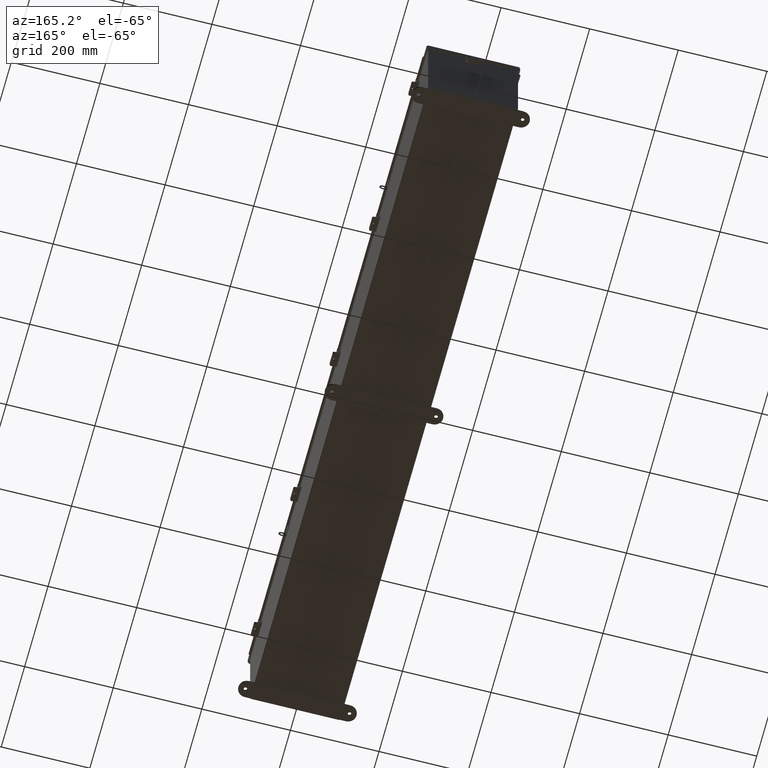
[diagram: clean part render]
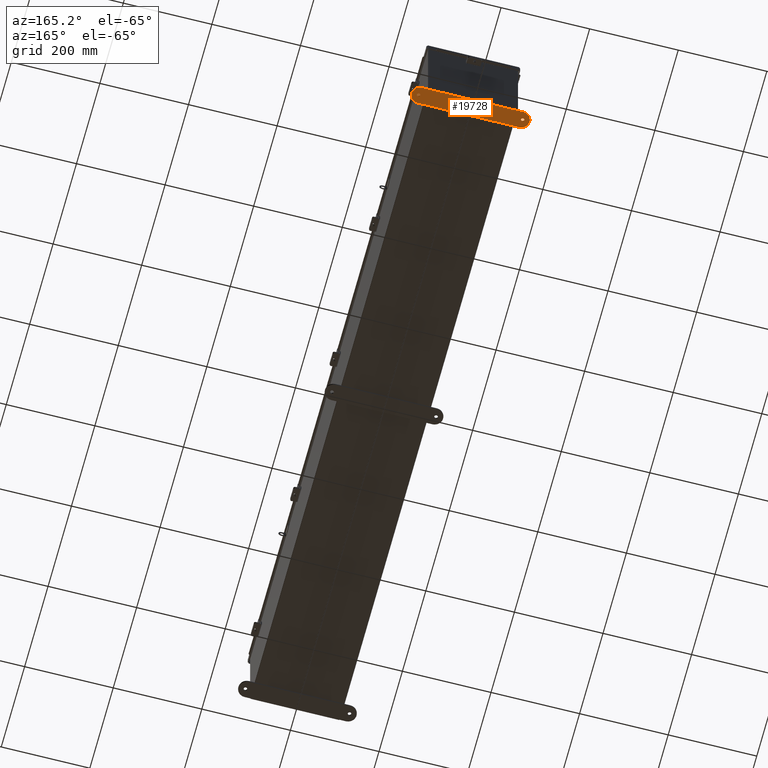
[diagram: same view with one face highlighted and labeled with its STEP entity id]
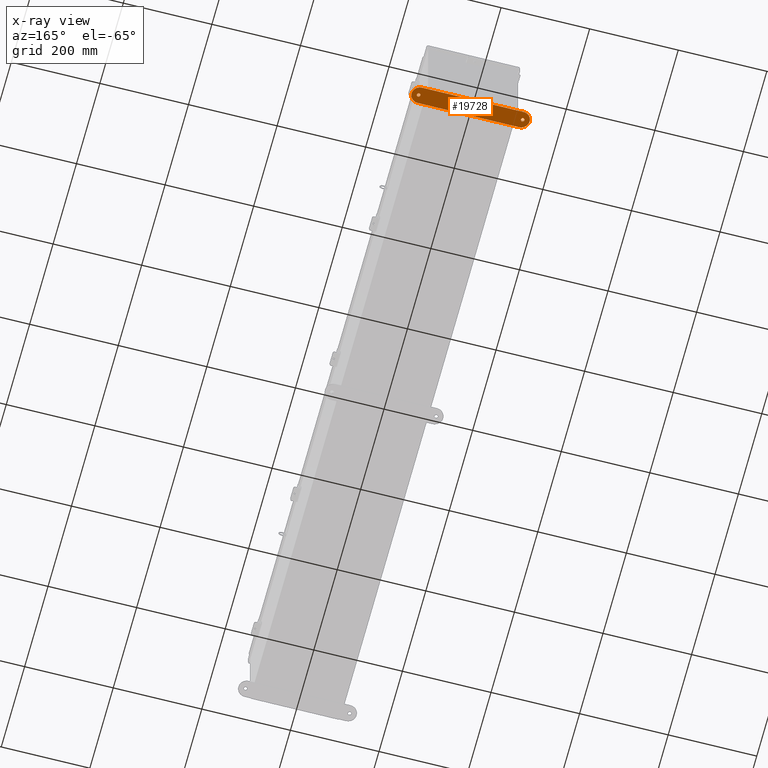
[diagram: x-ray of the same camera — body ghosted, the highlighted face saturated]
A machine part, auxiliary view. The second image highlights one B-rep face of the part: STEP entity #19728.
The next image is the same camera in x-ray: the body ghosted, the highlighted face saturated — about 0% of this face is hidden behind the body in this view.
In plain terms, the highlighted planar face has unit normal (0, -0, 1).
Its self-contained STEP definition (entity closure, byte-faithful):
#122 = CARTESIAN_POINT ( 'NONE',  ( 5.250000000000000900, 0.4120940649496125900, 0.0000000000000000000 ) ) ;
#833 = CIRCLE ( 'NONE', #23121, 0.7500000000000010000 ) ;
#1226 = CARTESIAN_POINT ( 'NONE',  ( -4.499999999999999100, 0.4120940649496124300, 0.0000000000000000000 ) ) ;
#1276 = CARTESIAN_POINT ( 'NONE',  ( 4.499999999999999100, 0.4120940649496125900, 0.0000000000000000000 ) ) ;
#2510 = ORIENTED_EDGE ( 'NONE', *, *, #4042, .T. ) ;
#2759 = PLANE ( 'NONE',  #8756 ) ;
#3418 = VERTEX_POINT ( 'NONE', #26612 ) ;
#3559 = ORIENTED_EDGE ( 'NONE', *, *, #28467, .T. ) ;
#3732 = AXIS2_PLACEMENT_3D ( 'NONE', #16878, #40427, #20242 ) ;
#4042 = EDGE_CURVE ( 'NONE', #30036, #30073, #29956, .T. ) ;
#4624 = DIRECTION ( 'NONE',  ( 1.000000000000000000, 0.0000000000000000000, 0.0000000000000000000 ) ) ;
#6141 = DIRECTION ( 'NONE',  ( -0.0000000000000000000, 0.0000000000000000000, -1.000000000000000000 ) ) ;
#6330 = VERTEX_POINT ( 'NONE', #11563 ) ;
#8036 = CIRCLE ( 'NONE', #27169, 0.1564999999999992800 ) ;
#8756 = AXIS2_PLACEMENT_3D ( 'NONE', #9389, #6141, #29668 ) ;
#9242 = CARTESIAN_POINT ( 'NONE',  ( 4.499999999999999100, 1.162094064949613400, 0.0000000000000000000 ) ) ;
#9389 = CARTESIAN_POINT ( 'NONE',  ( 4.499999999999999100, 0.4120940649496125900, 0.0000000000000000000 ) ) ;
#10222 = DIRECTION ( 'NONE',  ( 0.0000000000000000000, 0.0000000000000000000, 1.000000000000000000 ) ) ;
#10925 = CARTESIAN_POINT ( 'NONE',  ( -4.781499999999999400, 0.4120940649496085400, 0.0000000000000000000 ) ) ;
#11087 = DIRECTION ( 'NONE',  ( -0.0000000000000000000, -0.0000000000000000000, -1.000000000000000000 ) ) ;
#11563 = CARTESIAN_POINT ( 'NONE',  ( 4.499999999999999100, -0.3379059350503885700, 0.0000000000000000000 ) ) ;
#13334 = DIRECTION ( 'NONE',  ( 0.0000000000000000000, 0.0000000000000000000, 1.000000000000000000 ) ) ;
#13588 = CARTESIAN_POINT ( 'NONE',  ( -4.499999999999999100, -0.3379059350503874600, 0.0000000000000000000 ) ) ;
#15251 = VERTEX_POINT ( 'NONE', #10925 ) ;
#15560 = ORIENTED_EDGE ( 'NONE', *, *, #39230, .T. ) ;
#15685 = FACE_BOUND ( 'NONE', #16566, .T. ) ;
#16566 = EDGE_LOOP ( 'NONE', ( #38514, #19798 ) ) ;
#16878 = CARTESIAN_POINT ( 'NONE',  ( -4.625000000000000000, 0.4120940649496085400, 0.0000000000000000000 ) ) ;
#17693 = CARTESIAN_POINT ( 'NONE',  ( -4.499999999999999100, 1.162094064949612300, 0.0000000000000000000 ) ) ;
#17936 = CARTESIAN_POINT ( 'NONE',  ( 4.625000000000000000, 0.4120940649496085400, 0.0000000000000000000 ) ) ;
#19728 = ADVANCED_FACE ( 'NONE', ( #33572, #42525, #15685 ), #2759, .F. ) ;
#19798 = ORIENTED_EDGE ( 'NONE', *, *, #23324, .T. ) ;
#20242 = DIRECTION ( 'NONE',  ( 1.000000000000000000, 0.0000000000000000000, 0.0000000000000000000 ) ) ;
#20668 = VERTEX_POINT ( 'NONE', #40898 ) ;
#21011 = VECTOR ( 'NONE', #37878, 39.37007874015748100 ) ;
#21295 = DIRECTION ( 'NONE',  ( -1.000000000000000000, 0.0000000000000000000, 0.0000000000000000000 ) ) ;
#21335 = VECTOR ( 'NONE', #26794, 39.37007874015748100 ) ;
#21809 = AXIS2_PLACEMENT_3D ( 'NONE', #31239, #11087, #34650 ) ;
#21910 = EDGE_CURVE ( 'NONE', #30073, #30864, #29217, .T. ) ;
#22393 = LINE ( 'NONE', #43555, #21335 ) ;
#22777 = CIRCLE ( 'NONE', #3732, 0.1564999999999992800 ) ;
#23121 = AXIS2_PLACEMENT_3D ( 'NONE', #1276, #38657, #40421 ) ;
#23324 = EDGE_CURVE ( 'NONE', #3418, #20668, #8036, .T. ) ;
#24479 = ORIENTED_EDGE ( 'NONE', *, *, #21910, .T. ) ;
#24764 = DIRECTION ( 'NONE',  ( 0.0000000000000000000, 0.0000000000000000000, 1.000000000000000000 ) ) ;
#25810 = ORIENTED_EDGE ( 'NONE', *, *, #35844, .T. ) ;
#26154 = CARTESIAN_POINT ( 'NONE',  ( -4.499999999999999100, 1.162094064949612300, 0.0000000000000000000 ) ) ;
#26612 = CARTESIAN_POINT ( 'NONE',  ( 4.468500000000000600, 0.4120940649496085400, 0.0000000000000000000 ) ) ;
#26794 = DIRECTION ( 'NONE',  ( 1.000000000000000000, -1.214154663850783900E-016, 0.0000000000000000000 ) ) ;
#27169 = AXIS2_PLACEMENT_3D ( 'NONE', #17936, #41483, #21295 ) ;
#27313 = ORIENTED_EDGE ( 'NONE', *, *, #33983, .F. ) ;
#27814 = CIRCLE ( 'NONE', #21809, 0.1564999999999992800 ) ;
#28467 = EDGE_CURVE ( 'NONE', #37963, #30036, #833, .T. ) ;
#29111 = AXIS2_PLACEMENT_3D ( 'NONE', #1226, #24764, #4624 ) ;
#29217 = CIRCLE ( 'NONE', #29111, 0.7499999999999998900 ) ;
#29668 = DIRECTION ( 'NONE',  ( -1.000000000000000000, 0.0000000000000000000, 0.0000000000000000000 ) ) ;
#29956 = LINE ( 'NONE', #17693, #21011 ) ;
#30036 = VERTEX_POINT ( 'NONE', #9242 ) ;
#30073 = VERTEX_POINT ( 'NONE', #26154 ) ;
#30190 = EDGE_CURVE ( 'NONE', #15251, #32052, #22777, .T. ) ;
#30380 = CARTESIAN_POINT ( 'NONE',  ( -4.625000000000000000, 0.4120940649496085400, 0.0000000000000000000 ) ) ;
#30864 = VERTEX_POINT ( 'NONE', #13588 ) ;
#31239 = CARTESIAN_POINT ( 'NONE',  ( 4.625000000000000000, 0.4120940649496085400, 0.0000000000000000000 ) ) ;
#32052 = VERTEX_POINT ( 'NONE', #39270 ) ;
#33207 = EDGE_LOOP ( 'NONE', ( #27313, #34503 ) ) ;
#33489 = CARTESIAN_POINT ( 'NONE',  ( 4.499999999999999100, 0.4120940649496125900, 0.0000000000000000000 ) ) ;
#33572 = FACE_OUTER_BOUND ( 'NONE', #40509, .T. ) ;
#33771 = DIRECTION ( 'NONE',  ( 1.000000000000000000, 0.0000000000000000000, 0.0000000000000000000 ) ) ;
#33983 = EDGE_CURVE ( 'NONE', #32052, #15251, #41317, .T. ) ;
#34319 = CIRCLE ( 'NONE', #40289, 0.7500000000000010000 ) ;
#34503 = ORIENTED_EDGE ( 'NONE', *, *, #30190, .F. ) ;
#34650 = DIRECTION ( 'NONE',  ( -1.000000000000000000, 0.0000000000000000000, 0.0000000000000000000 ) ) ;
#35844 = EDGE_CURVE ( 'NONE', #6330, #37963, #34319, .T. ) ;
#36921 = DIRECTION ( 'NONE',  ( -1.000000000000000000, 0.0000000000000000000, 0.0000000000000000000 ) ) ;
#37878 = DIRECTION ( 'NONE',  ( -1.000000000000000000, -1.214154663850783900E-016, -0.0000000000000000000 ) ) ;
#37963 = VERTEX_POINT ( 'NONE', #122 ) ;
#38514 = ORIENTED_EDGE ( 'NONE', *, *, #43528, .T. ) ;
#38657 = DIRECTION ( 'NONE',  ( 0.0000000000000000000, 0.0000000000000000000, 1.000000000000000000 ) ) ;
#39230 = EDGE_CURVE ( 'NONE', #30864, #6330, #22393, .T. ) ;
#39270 = CARTESIAN_POINT ( 'NONE',  ( -4.468500000000000600, 0.4120940649496085400, 0.0000000000000000000 ) ) ;
#40289 = AXIS2_PLACEMENT_3D ( 'NONE', #33489, #13334, #36921 ) ;
#40421 = DIRECTION ( 'NONE',  ( -1.000000000000000000, 0.0000000000000000000, 0.0000000000000000000 ) ) ;
#40427 = DIRECTION ( 'NONE',  ( 0.0000000000000000000, 0.0000000000000000000, 1.000000000000000000 ) ) ;
#40509 = EDGE_LOOP ( 'NONE', ( #25810, #3559, #2510, #24479, #15560 ) ) ;
#40898 = CARTESIAN_POINT ( 'NONE',  ( 4.781499999999999400, 0.4120940649496085400, 0.0000000000000000000 ) ) ;
#41317 = CIRCLE ( 'NONE', #41646, 0.1564999999999992800 ) ;
#41483 = DIRECTION ( 'NONE',  ( -0.0000000000000000000, -0.0000000000000000000, -1.000000000000000000 ) ) ;
#41646 = AXIS2_PLACEMENT_3D ( 'NONE', #30380, #10222, #33771 ) ;
#42525 = FACE_BOUND ( 'NONE', #33207, .T. ) ;
#43528 = EDGE_CURVE ( 'NONE', #20668, #3418, #27814, .T. ) ;
#43555 = CARTESIAN_POINT ( 'NONE',  ( -4.499999999999999100, -0.3379059350503874600, 0.0000000000000000000 ) ) ;